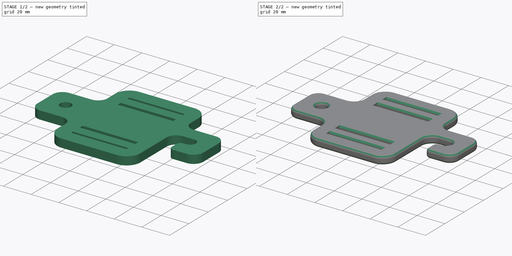
[diagram: build sequence overview — one tinted view per stage of 2, left to right]
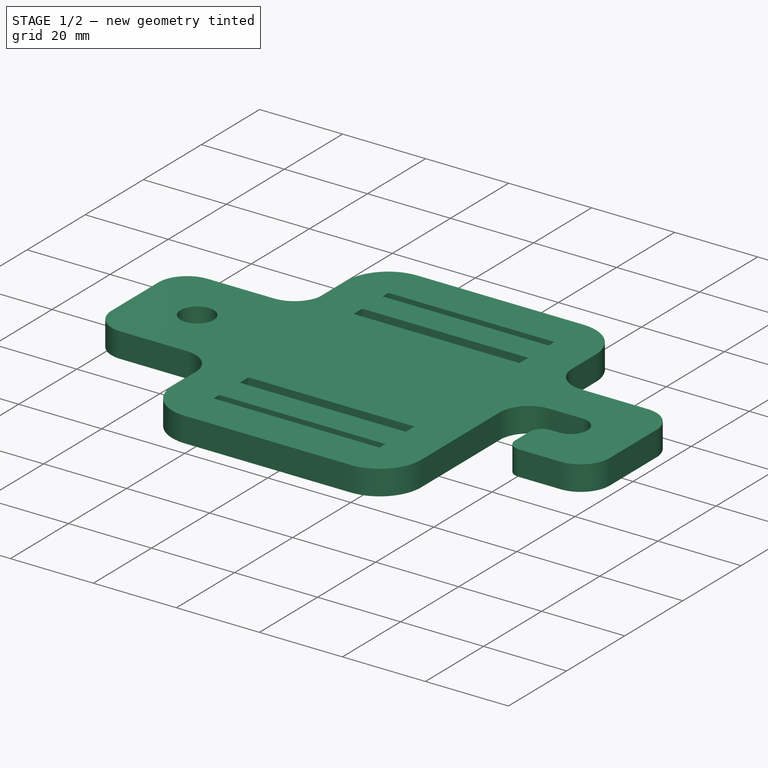
[diagram: stage 1 of 2 — iso view after this stage's code; geometry added in this stage tinted green]
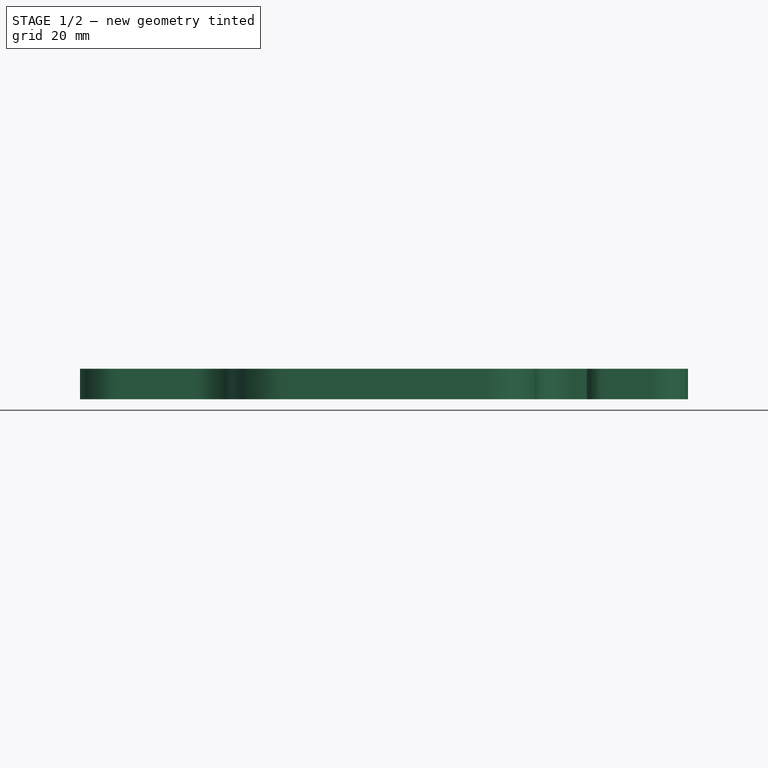
[diagram: stage 1 of 2 — front view after this stage's code; geometry added in this stage tinted green]
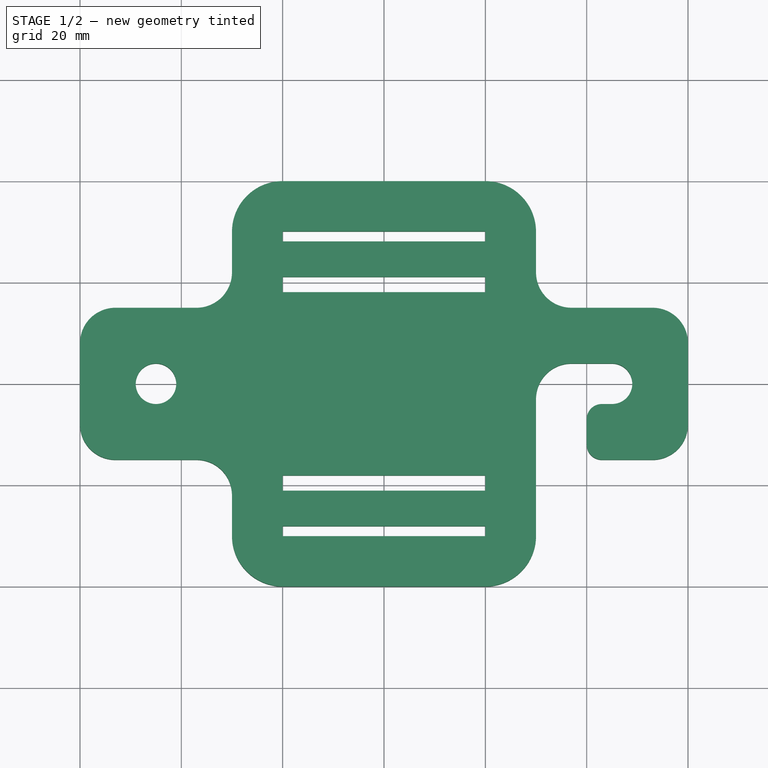
[diagram: stage 1 of 2 — top view after this stage's code; geometry added in this stage tinted green]
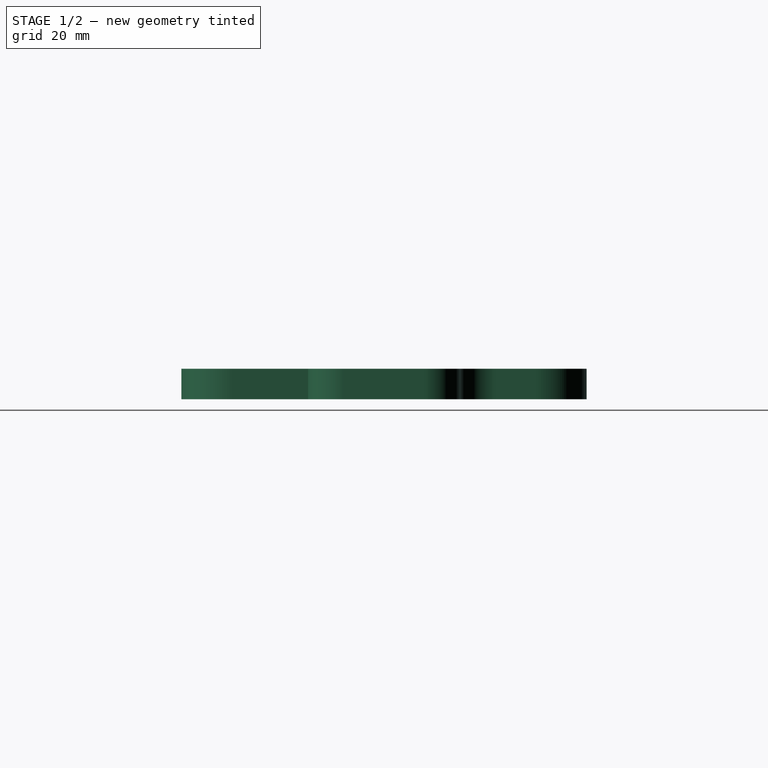
[diagram: stage 1 of 2 — right view after this stage's code; geometry added in this stage tinted green]
FCSTD DOCUMENT  (FreeCAD 0.18R4 (GitTag))
Label: Buckle top
License: All rights reserved
LicenseURL: http://en.wikipedia.org/wiki/All_rights_reserved
objects: Sketcher::SketchObject×2, PartDesign::Pad×1, PartDesign::Pocket×1, PartDesign::Body×1, Part::Chamfer×1, Part::Fillet×1
note: 9 computed .brp shape members not serialized (recipe doc carries the construction recipe); baked Part::Feature solids carry a one-line shape summary decoded from their .brp

FEATURE [Sketcher::SketchObject] Sketch
  MapMode = 5
  Support = -> [XY_Plane]
  sketch-geometry (28):
    g0: LineSegment StartX=-20 StartY=40 StartZ=0 EndX=20 EndY=40 EndZ=0
    g1: LineSegment StartX=30 StartY=30 StartZ=0 EndX=30 EndY=22 EndZ=0
    g2: LineSegment StartX=20 StartY=-40 StartZ=0 EndX=-20 EndY=-40 EndZ=0
    g3: LineSegment StartX=-30 StartY=-30 StartZ=0 EndX=-30 EndY=-22 EndZ=0
    g4: ArcOfCircle CenterX=-20 CenterY=30 CenterZ=0 NormalX=0 NormalY=0 NormalZ=1 AngleXU=0 Radius=10 StartAngle=1.5708 EndAngle=3.14159
    g5: ArcOfCircle CenterX=20 CenterY=30 CenterZ=0 NormalX=0 NormalY=0 NormalZ=1 AngleXU=0 Radius=10 StartAngle=0 EndAngle=1.5708
    g6: ArcOfCircle CenterX=20 CenterY=-30 CenterZ=0 NormalX=0 NormalY=0 NormalZ=1 AngleXU=0 Radius=10 StartAngle=4.71239 EndAngle=6.28319
    g7: ArcOfCircle CenterX=-20 CenterY=-30 CenterZ=0 NormalX=0 NormalY=0 NormalZ=1 AngleXU=0 Radius=10 StartAngle=3.14159 EndAngle=4.71239
    g8: LineSegment StartX=-37 StartY=15 StartZ=0 EndX=-53 EndY=15 EndZ=0
    g9: LineSegment StartX=-60 StartY=8 StartZ=0 EndX=-60 EndY=-8 EndZ=0
    g10: LineSegment StartX=-53 StartY=-15 StartZ=0 EndX=-37 EndY=-15 EndZ=0
    g11: ArcOfCircle CenterX=-53 CenterY=8 CenterZ=0 NormalX=0 NormalY=0 NormalZ=1 AngleXU=0 Radius=7 StartAngle=1.5708 EndAngle=3.14159
    g12: ArcOfCircle CenterX=-53 CenterY=-8 CenterZ=0 NormalX=0 NormalY=0 NormalZ=1 AngleXU=0 Radius=7 StartAngle=3.14159 EndAngle=4.71239
    g13: LineSegment StartX=-30 StartY=22 StartZ=0 EndX=-30 EndY=30 EndZ=0
    g14: ArcOfCircle CenterX=-37 CenterY=22 CenterZ=0 NormalX=0 NormalY=0 NormalZ=1 AngleXU=0 Radius=7 StartAngle=4.71239 EndAngle=6.28319
    g15: ArcOfCircle CenterX=-37 CenterY=-22 CenterZ=0 NormalX=0 NormalY=0 NormalZ=1 AngleXU=0 Radius=7 StartAngle=0 EndAngle=1.5708
    g16: LineSegment StartX=37 StartY=15 StartZ=0 EndX=53 EndY=15 EndZ=0
    g17: LineSegment StartX=60 StartY=8 StartZ=0 EndX=60 EndY=-8 EndZ=0
    g18: LineSegment StartX=53 StartY=-15 StartZ=0 EndX=37 EndY=-15 EndZ=0
    g19: LineSegment StartX=30 StartY=-22 StartZ=0 EndX=30 EndY=-30 EndZ=0
    g20: ArcOfCircle CenterX=37 CenterY=22 CenterZ=0 NormalX=0 NormalY=0 NormalZ=1 AngleXU=0 Radius=7 StartAngle=3.14159 EndAngle=4.71239
    g21: ArcOfCircle CenterX=37 CenterY=-22 CenterZ=0 NormalX=0 NormalY=0 NormalZ=1 AngleXU=0 Radius=7 StartAngle=1.5708 EndAngle=3.14159
    g22: ArcOfCircle CenterX=53 CenterY=8 CenterZ=0 NormalX=0 NormalY=0 NormalZ=1 AngleXU=0 Radius=7 StartAngle=0 EndAngle=1.5708
    g23: ArcOfCircle CenterX=53 CenterY=-8 CenterZ=0 NormalX=0 NormalY=0 NormalZ=1 AngleXU=0 Radius=7 StartAngle=4.71239 EndAngle=6.28319
    g24: LineSegment [constr] StartX=0 StartY=40 StartZ=0 EndX=0 EndY=-40 EndZ=0
    g25: LineSegment [constr] StartX=-60 StartY=-1.1e-14 StartZ=0 EndX=60 EndY=1.1e-14 EndZ=0
    g26: GeomPoint X=0 Y=0 Z=0
    g27: GeomPoint X=0 Y=0 Z=0
  constraints (69):
    c: Horizontal(g0)
    c: Vertical(g3)
    c: Tangent(g0,g4) = 1.5708
    c: Coincident(g13,g4) = 1.5708
    c: Tangent(g0,g5) = 1.5708
    c: Tangent(g1,g5) = 1.5708
    c: Tangent(g2,g6) = 1.5708
    c: Tangent(g2,g7) = 1.5708
    c: Tangent(g3,g7) = 1.5708
    c: Equal(g2,g0)
    c: Horizontal(g8)
    c: Horizontal(g10)
    c: Vertical(g9)
    c: Tangent(g8,g11) = -1.5708
    c: Tangent(g9,g11) = -1.5708
    c: Tangent(g9,g12) = -1.5708
    c: Tangent(g10,g12) = -1.5708
    c: Tangent(g3,g13)
    c: Tangent(g8,g14) = 1.5708
    c: Tangent(g13,g14) = -1.5708
    c: Tangent(g10,g15) = 1.5708
    c: Tangent(g3,g15) = -1.5708
    c: Tangent(g4,g13) = 1.5708
    c: Horizontal(g2)
    c: Horizontal(g16)
    c: Horizontal(g18)
    c: Vertical(g17)
    c: Tangent(g1,g20) = -1.5708
    c: Tangent(g16,g20) = -1.5708
    c: Tangent(g19,g21) = -1.5708
    c: Tangent(g18,g21) = -1.5708
    c: Tangent(g16,g22) = 1.5708
    c: Tangent(g17,g22) = 1.5708
    c: Tangent(g17,g23) = 1.5708
    c: Tangent(g18,g23) = 1.5708
    c: DistanceX(g5,g1) = 10
    c: PointOnObject(g24,g0)
    c: PointOnObject(g24,g2)
    c: Vertical(g24)
    c: DistanceY(g24,g24) = 80
    c: Perpendicular(g25,g17) = 4.71239
    c: DistanceX(g25,g25) = 120
    c: Vertical(g19)
    c: Tangent(g19,g6) = 1.5708
    c: Vertical(g1)
    c: Equal(g6,g5)
    c: Equal(g5,g4)
    c: Equal(g4,g7)
    c: Equal(g13,g3)
    c: Equal(g3,g19)
    c: Equal(g19,g1)
    c: DistanceX(g14,g13) = 7
    c: Equal(g14,g15)
    c: Equal(g15,g21)
    c: Equal(g21,g20)
    c: DistanceX(g9,g11) = 7
    c: Equal(g11,g12)
    c: Equal(g12,g22)
    c: Equal(g22,g23)
    c: DistanceY(g18,g16) = 30
    c: Equal(g18,g10)
    c: DistanceX(g0,g0) = 40
    c: PointOnObject(g25,g9)
    c: PointOnObject(g26,g25)
    c: PointOnObject(g27,g24)
    c: DistanceY(g24,g27) = 40
    c: DistanceX(g26,g25) = 60
    c: Coincident(g27,g26)
    c: Coincident(g26,g-1)
FEATURE [PartDesign::Pad] Pad  label="Base"
  Length = 6
  Length2 = 100
  Profile = -> Sketch
  Refine = true
  Type = 0
FEATURE [Sketcher::SketchObject] Sketch001
  ExternalGeometry = -> [Pad]
  MapMode = 5
  Placement = pos=(0,0,6) rot=(0,0,1;0rad)
  Support = -> [Pad]
  sketch-geometry (28):
    g0: Circle CenterX=-45 CenterY=0 CenterZ=0 NormalX=0 NormalY=0 NormalZ=1 AngleXU=0 Radius=4
    g1: ArcOfCircle CenterX=45 CenterY=0 CenterZ=0 NormalX=0 NormalY=0 NormalZ=1 AngleXU=0 Radius=4 StartAngle=4.71239 EndAngle=7.85398
    g2: LineSegment StartX=30 StartY=-22 StartZ=0 EndX=30 EndY=-3 EndZ=0
    g3: LineSegment StartX=37 StartY=4 StartZ=0 EndX=45 EndY=4 EndZ=0
    g4: LineSegment StartX=45 StartY=-4 StartZ=0 EndX=43 EndY=-4 EndZ=0
    g5: LineSegment StartX=40 StartY=-7 StartZ=0 EndX=40 EndY=-12 EndZ=0
    g6: ArcOfCircle CenterX=37 CenterY=-3 CenterZ=0 NormalX=0 NormalY=0 NormalZ=1 AngleXU=0 Radius=7 StartAngle=1.5708 EndAngle=3.14159
    g7: ArcOfCircle CenterX=43 CenterY=-7 CenterZ=0 NormalX=0 NormalY=0 NormalZ=1 AngleXU=0 Radius=3 StartAngle=1.5708 EndAngle=3.14159
    g8: ArcOfCircle CenterX=37 CenterY=-22 CenterZ=0 NormalX=0 NormalY=0 NormalZ=1 AngleXU=0 Radius=7 StartAngle=1.5708 EndAngle=3.14159
    g9: ArcOfCircle CenterX=43 CenterY=-12 CenterZ=0 NormalX=0 NormalY=0 NormalZ=1 AngleXU=0 Radius=3 StartAngle=3.14159 EndAngle=4.71239
    g10: LineSegment StartX=43 StartY=-15 StartZ=0 EndX=37 EndY=-15 EndZ=0
    g11: LineSegment StartX=-20 StartY=30.0877 StartZ=0 EndX=20 EndY=30.0877 EndZ=0
    g12: LineSegment StartX=20 StartY=30.0877 StartZ=0 EndX=20 EndY=28.0877 EndZ=0
    g13: LineSegment StartX=20 StartY=28.0877 StartZ=0 EndX=-20 EndY=28.0877 EndZ=0
    g14: LineSegment StartX=-20 StartY=28.0877 StartZ=0 EndX=-20 EndY=30.0877 EndZ=0
    g15: LineSegment StartX=-20 StartY=21.0877 StartZ=0 EndX=20 EndY=21.0877 EndZ=0
    g16: LineSegment StartX=20 StartY=21.0877 StartZ=0 EndX=20 EndY=18.0877 EndZ=0
    g17: LineSegment StartX=20 StartY=18.0877 StartZ=0 EndX=-20 EndY=18.0877 EndZ=0
    g18: LineSegment StartX=-20 StartY=18.0877 StartZ=0 EndX=-20 EndY=21.0877 EndZ=0
    g19: LineSegment StartX=-20 StartY=-18.0877 StartZ=0 EndX=20 EndY=-18.0877 EndZ=0
    g20: LineSegment StartX=20 StartY=-18.0877 StartZ=0 EndX=20 EndY=-21.0877 EndZ=0
    g21: LineSegment StartX=20 StartY=-21.0877 StartZ=0 EndX=-20 EndY=-21.0877 EndZ=0
    g22: LineSegment StartX=-20 StartY=-21.0877 StartZ=0 EndX=-20 EndY=-18.0877 EndZ=0
    g23: LineSegment StartX=-20 StartY=-28.0877 StartZ=0 EndX=20 EndY=-28.0877 EndZ=0
    g24: LineSegment StartX=20 StartY=-28.0877 StartZ=0 EndX=20 EndY=-30.0877 EndZ=0
    g25: LineSegment StartX=20 StartY=-30.0877 StartZ=0 EndX=-20 EndY=-30.0877 EndZ=0
    g26: LineSegment StartX=-20 StartY=-30.0877 StartZ=0 EndX=-20 EndY=-28.0877 EndZ=0
    g27: LineSegment [constr] StartX=-0.029682 StartY=28.0877 StartZ=0 EndX=-0.029682 EndY=21.0877 EndZ=0
  constraints (75):
    c: PointOnObject(g0,g-1)
    c: Radius(g0) = 4
    c: DistanceX(g-3,g0) = 15
    c: Symmetric(g1,g0,g-1)
    c: Equal(g0,g1)
    c: Horizontal(g4)
    c: Coincident(g2,g-6)
    c: DistanceX(g2,g5) = 10
    c: Vertical(g5)
    c: Vertical(g2)
    c: Horizontal(g3)
    c: Tangent(g2,g6) = 1.5708
    c: Tangent(g3,g6) = 1.5708
    c: Radius(g6) = 7
    c: Tangent(g4,g7) = -1.5708
    c: Tangent(g5,g7) = -1.5708
    c: Radius(g7) = 3
    c: Tangent(g1,g3) = 1.5708
    c: Tangent(g1,g4) = 1.5708
    c: Coincident(g8,g2)
    c: Radius(g9) = 3
    c: PointOnObject(g9,g-5)
    c: Coincident(g8,g-6)
    c: Tangent(g8,g-5) = -1.5708
    c: Tangent(g-5,g9)
    c: Tangent(g9,g5) = -1.5708
    c: Coincident(g10,g9)
    c: Horizontal(g10)
    c: Coincident(g8,g10)
    c: Coincident(g11,g12)
    c: Coincident(g12,g13)
    c: Coincident(g13,g14)
    c: Coincident(g14,g11)
    c: Vertical(g12)
    c: Coincident(g15,g16)
    c: Coincident(g16,g17)
    c: Coincident(g17,g18)
    c: Coincident(g18,g15)
    c: Vertical(g16)
    c: Coincident(g19,g20)
    c: Coincident(g20,g21)
    c: Coincident(g21,g22)
    c: Coincident(g22,g19)
    c: Horizontal(g19)
    c: Vertical(g20)
    c: Coincident(g23,g24)
    c: Coincident(g24,g25)
    c: Coincident(g25,g26)
    c: Coincident(g26,g23)
    c: Horizontal(g23)
    c: Vertical(g24)
    c: DistanceY(g12,g12) = 2
    c: DistanceX(g11,g11) = 40
    c: Equal(g25,g23)
    c: Equal(g23,g21)
    c: Equal(g21,g19)
    c: Equal(g19,g17)
    c: Equal(g17,g15)
    c: Equal(g15,g13)
    c: Equal(g13,g11)
    c: PointOnObject(g27,g13)
    c: PointOnObject(g27,g15)
    c: Vertical(g27)
    c: Symmetric(g11,g11,g-2)
    c: Symmetric(g15,g15,g-2)
    c: Symmetric(g16,g19,g-1)
    c: Symmetric(g12,g23,g-1)
    c: Block(g27)
    c: DistanceY(g16,g15) = 3
    c: Equal(g12,g14)
    c: Equal(g14,g26)
    c: Equal(g26,g24)
    c: Equal(g18,g22)
    c: Equal(g22,g20)
    c: Equal(g20,g16)
FEATURE [PartDesign::Pocket] Pocket  label="Holes"
  BaseFeature = -> Pad
  Length = 5
  Length2 = 100
  Profile = -> Sketch001
  Refine = true
  Type = 1
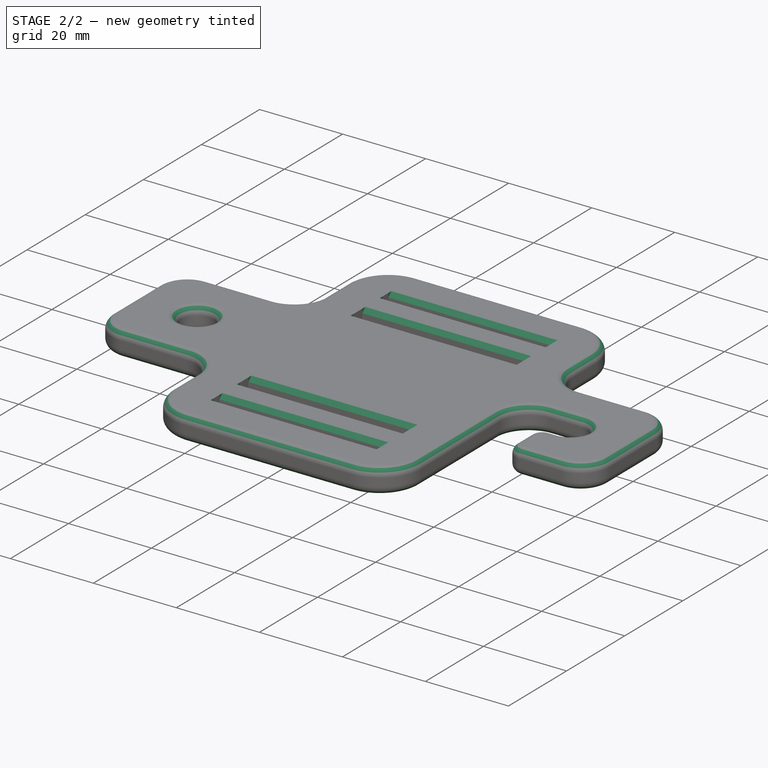
[diagram: stage 2 of 2 — iso view after this stage's code; geometry added in this stage tinted green]
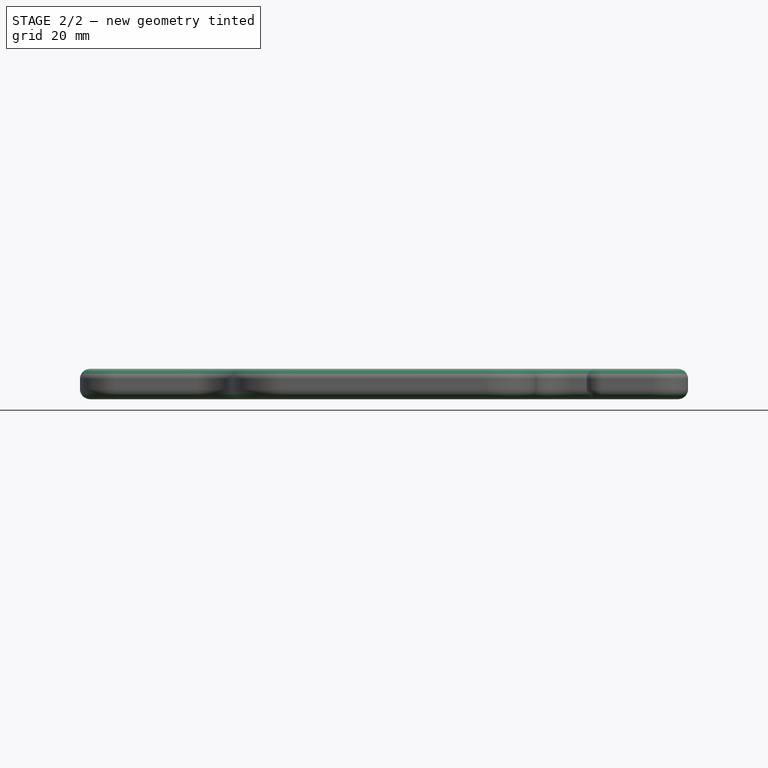
[diagram: stage 2 of 2 — front view after this stage's code; geometry added in this stage tinted green]
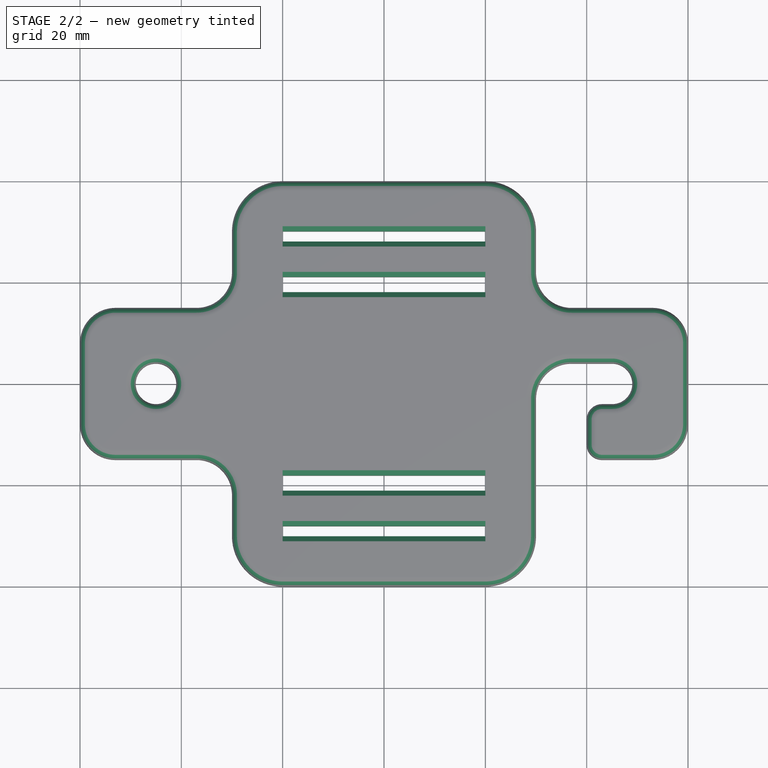
[diagram: stage 2 of 2 — top view after this stage's code; geometry added in this stage tinted green]
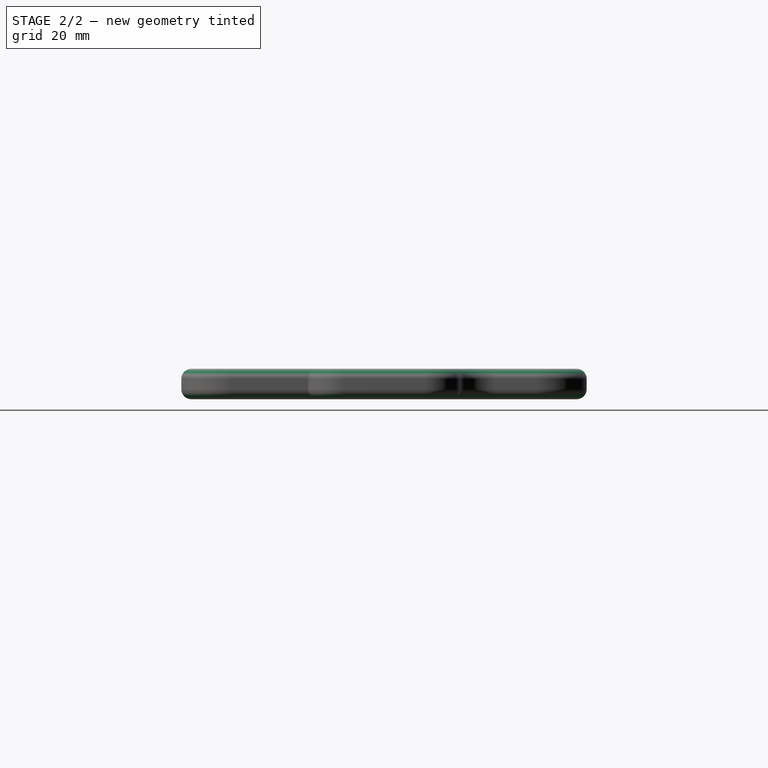
[diagram: stage 2 of 2 — right view after this stage's code; geometry added in this stage tinted green]
FEATURE [PartDesign::Body] Body  label="BuckleBase"
  Group = -> [Sketch,Pad,Sketch001,Pocket]
  Origin = -> Origin
  Tip = -> Pocket
FEATURE [Part::Chamfer] Chamfer
  Base = -> Pocket
  Edges = 16 edges r=1: [Edge39,Edge41,Edge43,Edge45,Edge48,Edge50,Edge52,Edge54,Edge82,Edge84,Edge86,Edge88,Edge91,Edge93,Edge95,Edge97]
FEATURE [Part::Fillet] Fillet
  Base = -> Chamfer
  Edges = 65 edges r=2: [Edge9,Edge10,Edge11,Edge12,Edge13,Edge14,Edge15,Edge16,Edge17,Edge18,Edge19,Edge20,Edge21,Edge22,Edge23,Edge24,Edge25,Edge26,Edge27,Edge28,Edge29,Edge30,Edge31,Edge32,Edge33,Edge34,Edge35,Edge36,Edge37,Edge38,Edge39,Edge86,Edge88,Edge90,Edge92,Edge94,Edge96,Edge98,Edge100,Edge102,Edge103,Edge104,+23 more]
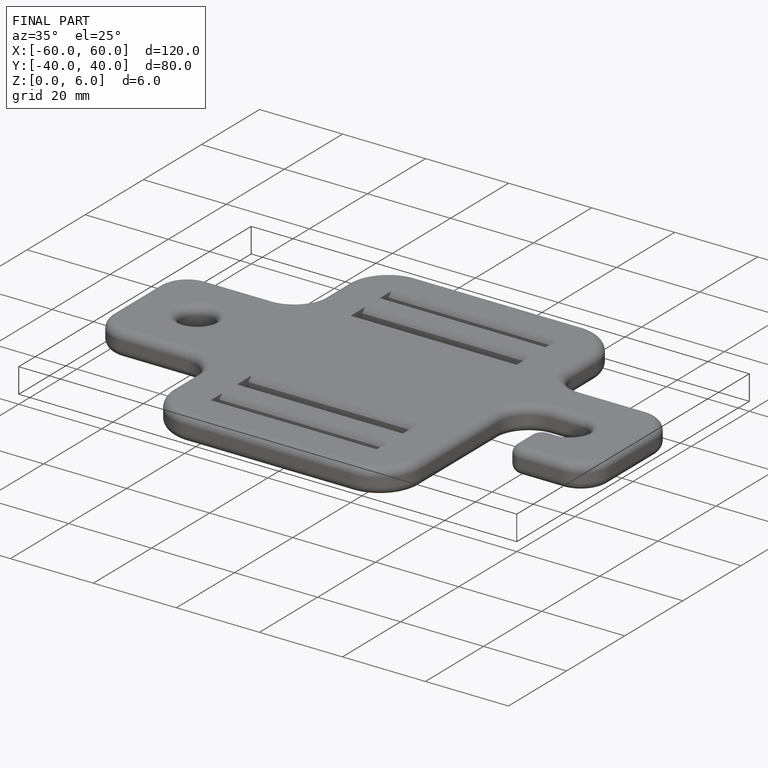
[diagram: finished part — iso view with bounding-box wireframe]
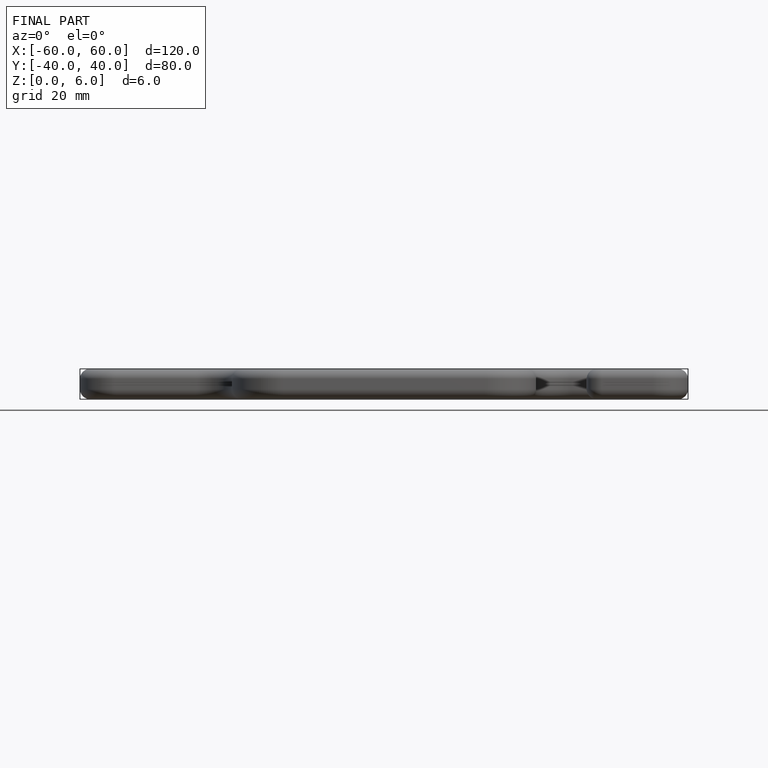
[diagram: finished part — front view with bounding-box wireframe]
